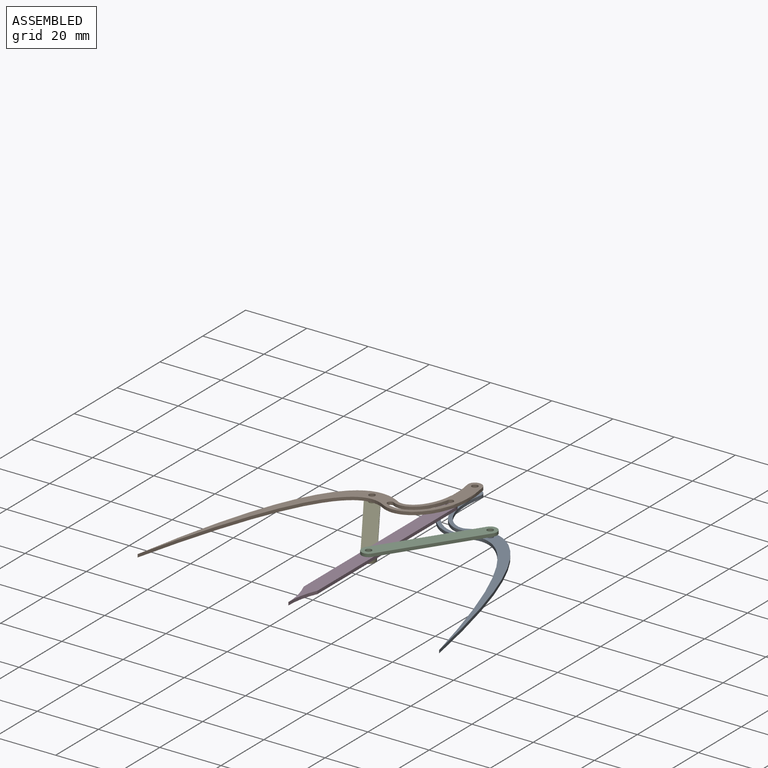
[diagram: assembled view]
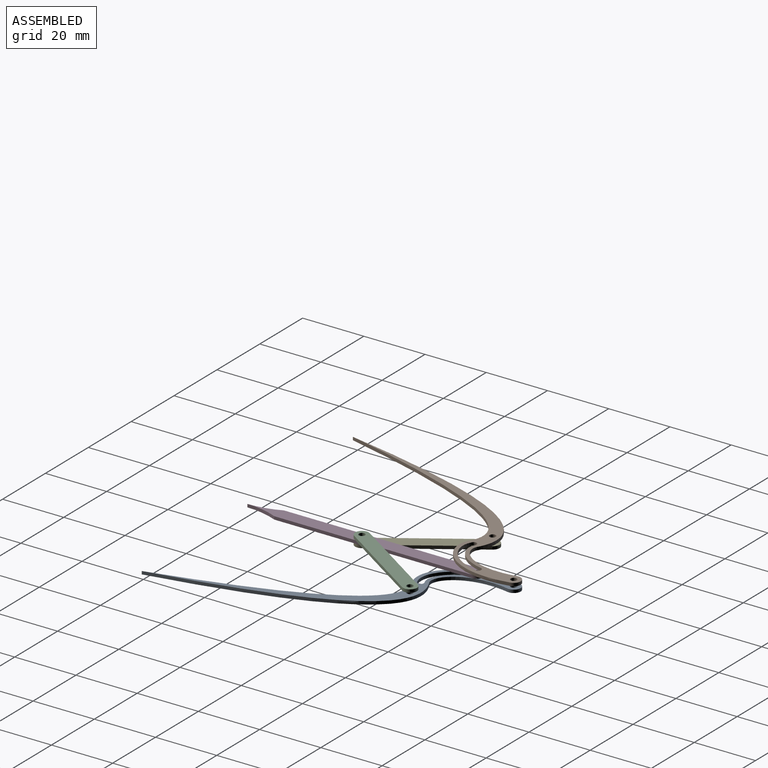
[diagram: assembled view, second angle]
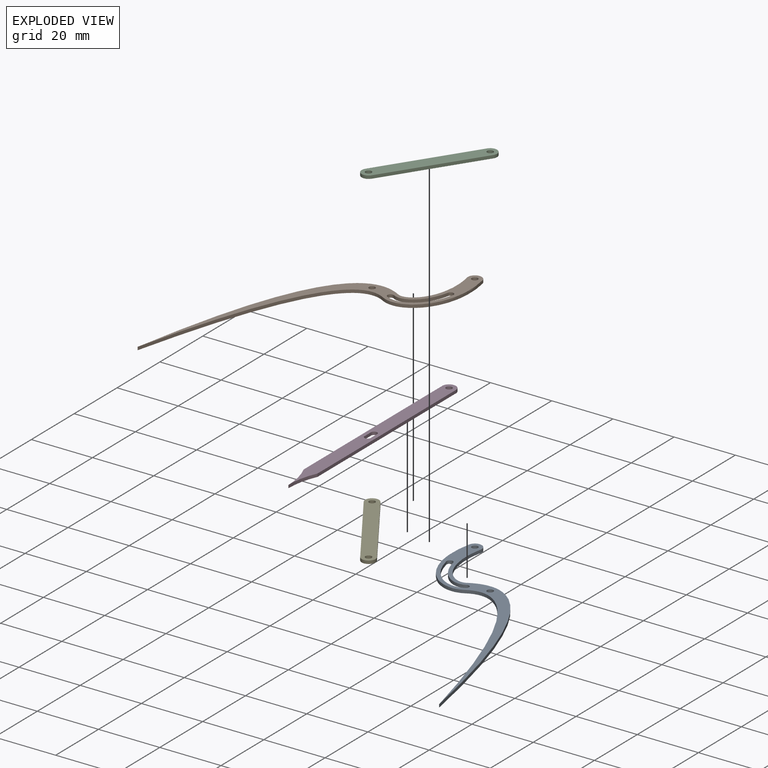
[diagram: exploded view]
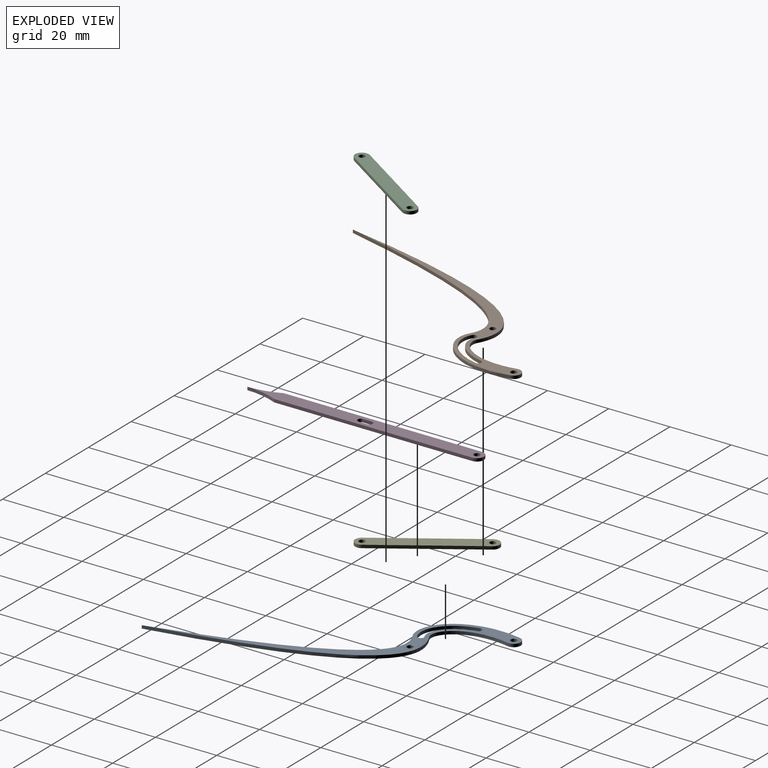
[diagram: exploded view, second angle]
ASSEMBLY  parts=5 mates=8
PART A: 15 faces, bbox 31.3x102.4x1.1 mm
  f0: plane 102.39x31.31mm, normal (0,0,1), area 291.1mm2, adj f2,f3,f4,f5,f6,f7,f8,f9
  f1: plane 102.39x31.32mm, normal (0,0,-1), area 291.1mm2, adj f2,f3,f4,f5,f6,f7,f8,f9
  f2: extruded ~77.25x13.4mm, area 86.4mm2, adj f0,f1,f3,f8
  f3: extruded ~12.11x4.41mm, area 14.3mm2, adj f0,f1,f2,f4
  f4: extruded ~9.15x5.32mm, area 10.7mm2, adj f0,f1,f3,f5
  f5: cylinder r=2.25mm len=3.94mm, axis (0,0,-1), area 7.1mm2, adj f0,f1,f4,f6
  f6: extruded ~10.81x6.24mm, area 12.6mm2, adj f0,f1,f5,f7
  f7: extruded ~17.93x8.91mm, area 22.6mm2, adj f0,f1,f6,f8
  f8: extruded ~72.75x10.22mm, area 79.1mm2, adj f0,f1,f2,f7
  f9: extruded ~13.73x5.66mm, area 16.6mm2, adj f0,f1,f10,f12
  f10: cylinder r=1mm len=1.96mm, axis (0,0,-1), area 3.1mm2, adj f0,f1,f9,f11
  f11: extruded ~16.32x7.66mm, area 20.3mm2, adj f0,f1,f10,f12
  f12: cylinder r=1mm len=2mm, axis (0,0,-1), area 3.1mm2, adj f0,f1,f9,f11
  f13: cylinder r=1mm len=2mm, axis (0,0,-1), area 6.3mm2, adj f0,f1
  f14: cylinder r=1mm len=2mm, axis (0,0,-1), area 6.3mm2, adj f0,f1
PART B: same geometry as A
PART C: 8 faces, bbox 4.5x39.5x1 mm
  f0: plane 39.5x4.5mm, normal (0,0,1), area 167.1mm2, adj f2,f3,f4,f5,f6,f7
  f1: plane 39.5x4.5mm, normal (0,0,-1), area 167.1mm2, adj f2,f3,f4,f5,f6,f7
  f2: cylinder r=2.25mm len=4.5mm, axis (0,0,-1), area 7.1mm2, adj f0,f1,f3,f5
  f3: plane 35x1mm, normal (1,0,0), area 35mm2, adj f0,f1,f2,f4
  f4: cylinder r=2.25mm len=4.5mm, axis (0,0,-1), area 7.1mm2, adj f0,f1,f3,f5
  f5: plane 35x1mm, normal (-1,0,0), area 35mm2, adj f0,f1,f2,f4
  f6: cylinder r=1mm len=2mm, axis (0,0,-1), area 6.3mm2, adj f0,f1
  f7: cylinder r=1mm len=2mm, axis (0,0,-1), area 6.3mm2, adj f0,f1
PART D: 12 faces, bbox 4.5x77.3x1 mm
  f0: plane 77.25x4.5mm, normal (0,0,1), area 301.8mm2, adj f2,f3,f4,f5,f6,f7,f8,f9
  f1: plane 77.25x4.5mm, normal (0,0,-1), area 301.8mm2, adj f2,f3,f4,f5,f6,f7,f8,f9
  f2: cylinder r=25mm len=10.37mm, axis (0,0,-1), area 10.7mm2, adj f0,f1,f3,f6
  f3: plane 64.63x1mm, normal (1,0,0), area 64.6mm2, adj f0,f1,f2,f4
  f4: cylinder r=2.25mm len=4.5mm, axis (0,0,-1), area 7.1mm2, adj f0,f1,f3,f5
  f5: plane 64.63x1mm, normal (-1,0,0), area 64.6mm2, adj f0,f1,f4,f6
  f6: cylinder r=25mm len=10.37mm, axis (0,0,-1), area 10.7mm2, adj f0,f1,f2,f5
  f7: cylinder r=1mm len=2mm, axis (0,0,-1), area 6.3mm2, adj f0,f1
  f8: cylinder r=1mm len=2mm, axis (0,0,-1), area 3.1mm2, adj f0,f1,f9,f11
  f9: plane 3x1mm, normal (1,0,0), area 3mm2, adj f0,f1,f8,f10
  f10: cylinder r=1mm len=2mm, axis (0,0,-1), area 3.1mm2, adj f0,f1,f9,f11
  f11: plane 3x1mm, normal (-1,0,0), area 3mm2, adj f0,f1,f8,f10
PART E: same geometry as C
PLACE A rot(axis=(0,0,1),29.5deg) t=(49.25,0,-1)mm
PLACE B rot(axis=(-0.25,-0.97,0),180deg) t=(-49.25,0,2)mm
PLACE C rot(axis=(-0.29,-0.96,0),180deg) t=(0,37.44,2)mm
PLACE D at identity fixed
PLACE E rot(axis=(0,0,1),33.5deg) t=(0,37.44,-1)mm
MATE cylindrical E.f4 <-> B.f14  axis (0,0,-1) through (-19.3,66.64,-0.5)mm
MATE planar C.f0 <-> D.f0  axis (0,0,-1) through (9.65,52.04,1)mm
MATE planar E.f0 <-> D.f1  axis (0,0,1) through (-9.65,52.04,0)mm
MATE cylindrical E.f2 <-> C.f2  axis (0,0,-1) through (0,37.44,-1)mm
MATE cylindrical A.f5 <-> B.f5  axis (0,0,-1) through (0,87.03,0)mm
MATE cylindrical C.f4 <-> A.f14  axis (0,0,1) through (19.3,66.64,2)mm
MATE planar B.f0 <-> D.f0  axis (0,0,-1) through (-20.72,59.1,1)mm
MATE planar A.f0 <-> D.f1  axis (0,0,1) through (20.72,59.1,0)mm
